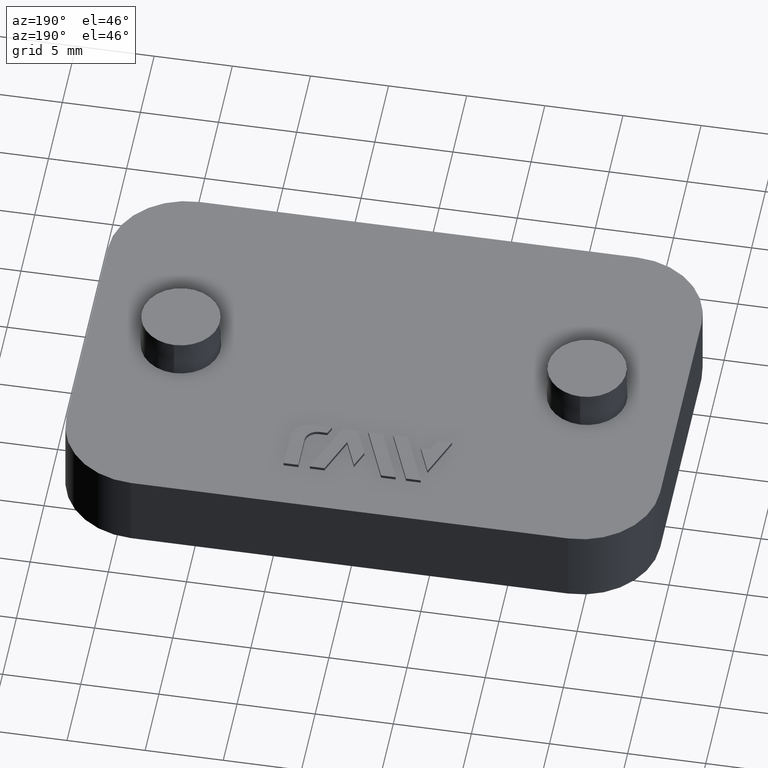
[diagram: clean part render]
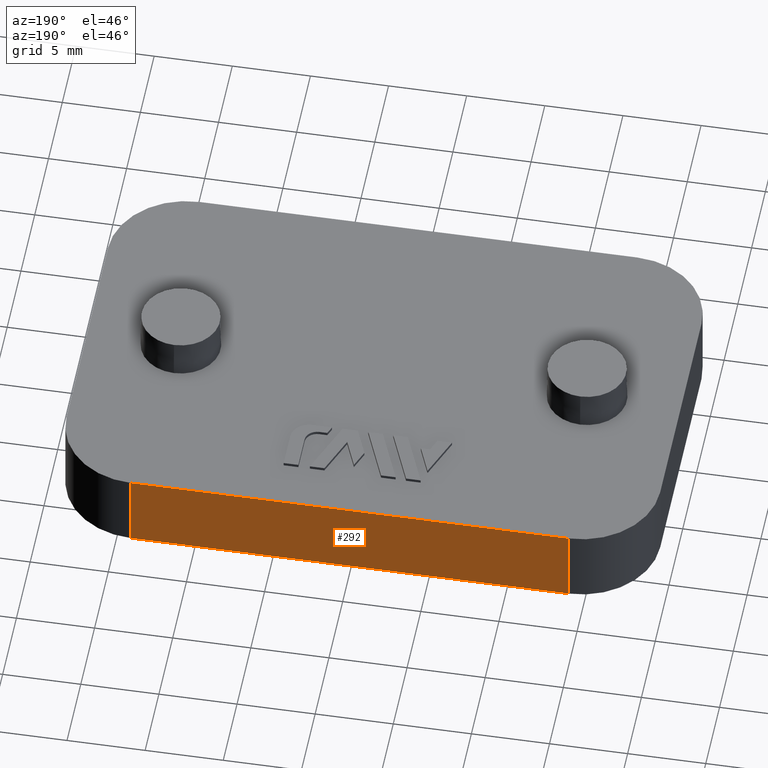
[diagram: same view with one face highlighted and labeled with its STEP entity id]
A machine part, auxiliary view. The second image highlights one B-rep face of the part: STEP entity #292.
In plain terms, the highlighted planar face has unit normal (0, -1, 0).
Its self-contained STEP definition (entity closure, byte-faithful):
#292 = ADVANCED_FACE( '', ( #772 ), #773, .F. );
#772 = FACE_OUTER_BOUND( '', #1260, .T. );
#773 = PLANE( '', #1261 );
#1260 = EDGE_LOOP( '', ( #3029, #3030, #3031, #3032 ) );
#1261 = AXIS2_PLACEMENT_3D( '', #3033, #3034, #3035 );
#3029 = ORIENTED_EDGE( '', *, *, #3104, .T. );
#3030 = ORIENTED_EDGE( '', *, *, #3586, .T. );
#3031 = ORIENTED_EDGE( '', *, *, #3640, .F. );
#3032 = ORIENTED_EDGE( '', *, *, #3580, .F. );
#3033 = CARTESIAN_POINT( '', ( -30.5000000000000, 12.5000000000000, -7.70427287504621E-015 ) );
#3034 = DIRECTION( '', ( 0.000000000000000, -1.00000000000000, 6.12303176911189E-017 ) );
#3035 = DIRECTION( '', ( -1.00000000000000, 0.000000000000000, 0.000000000000000 ) );
#3104 = EDGE_CURVE( '', #3685, #3682, #3686, .T. );
#3580 = EDGE_CURVE( '', #3685, #4499, #4500, .T. );
#3586 = EDGE_CURVE( '', #3682, #4507, #4509, .T. );
#3640 = EDGE_CURVE( '', #4499, #4507, #4588, .T. );
#3682 = VERTEX_POINT( '', #4641 );
#3685 = VERTEX_POINT( '', #4644 );
#3686 = LINE( '', #4645, #4646 );
#4499 = VERTEX_POINT( '', #5925 );
#4500 = LINE( '', #5926, #5927 );
#4507 = VERTEX_POINT( '', #5936 );
#4509 = LINE( '', #5938, #5939 );
#4588 = LINE( '', #6068, #6069 );
#4641 = CARTESIAN_POINT( '', ( 14.0000000000000, 12.5000000000000, 4.99999999999999 ) );
#4644 = CARTESIAN_POINT( '', ( -14.0000000000000, 12.5000000000000, 4.99999999999999 ) );
#4645 = CARTESIAN_POINT( '', ( -30.5000000000000, 12.5000000000000, 4.99999999999999 ) );
#4646 = VECTOR( '', #6122, 1000.00000000000 );
#5925 = CARTESIAN_POINT( '', ( -14.0000000000000, 12.5000000000000, -7.70427287504621E-015 ) );
#5926 = CARTESIAN_POINT( '', ( -14.0000000000000, 12.5000000000000, 75.3516460403602 ) );
#5927 = VECTOR( '', #6616, 1000.00000000000 );
#5936 = CARTESIAN_POINT( '', ( 14.0000000000000, 12.5000000000000, -7.65378971138986E-016 ) );
#5938 = CARTESIAN_POINT( '', ( 14.0000000000000, 12.5000000000000, 62.9196969526088 ) );
#5939 = VECTOR( '', #6628, 1000.00000000000 );
#6068 = CARTESIAN_POINT( '', ( -30.5000000000000, 12.5000000000000, -7.70427287504621E-015 ) );
#6069 = VECTOR( '', #6688, 1000.00000000000 );
#6122 = DIRECTION( '', ( 1.00000000000000, 0.000000000000000, 0.000000000000000 ) );
#6616 = DIRECTION( '', ( 1.60751816480226E-016, -1.81794180051289E-016, -1.00000000000000 ) );
#6628 = DIRECTION( '', ( 1.60751816480226E-016, -1.81794180051289E-016, -1.00000000000000 ) );
#6688 = DIRECTION( '', ( 1.00000000000000, 0.000000000000000, 0.000000000000000 ) );